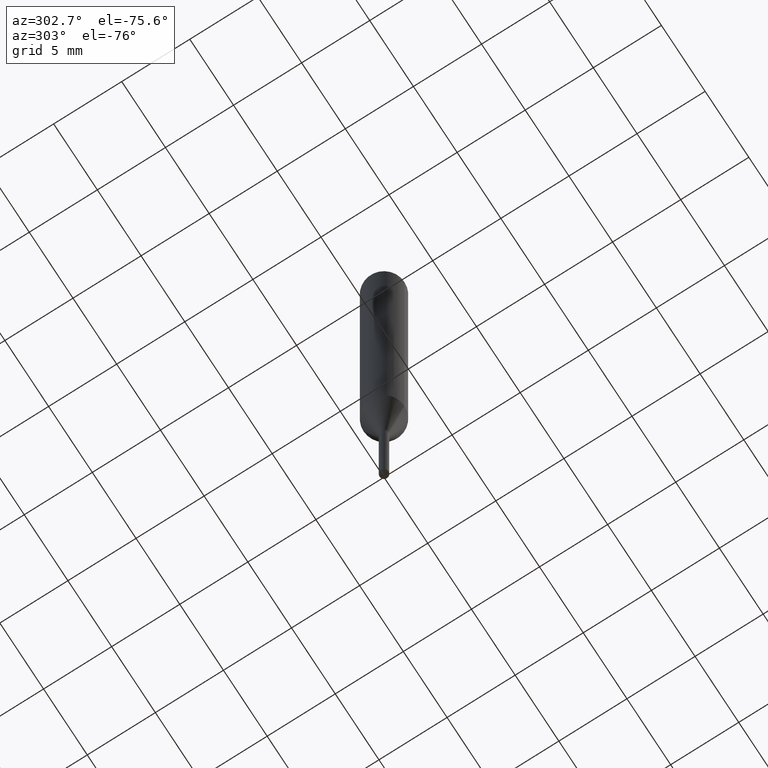
[diagram: clean part render]
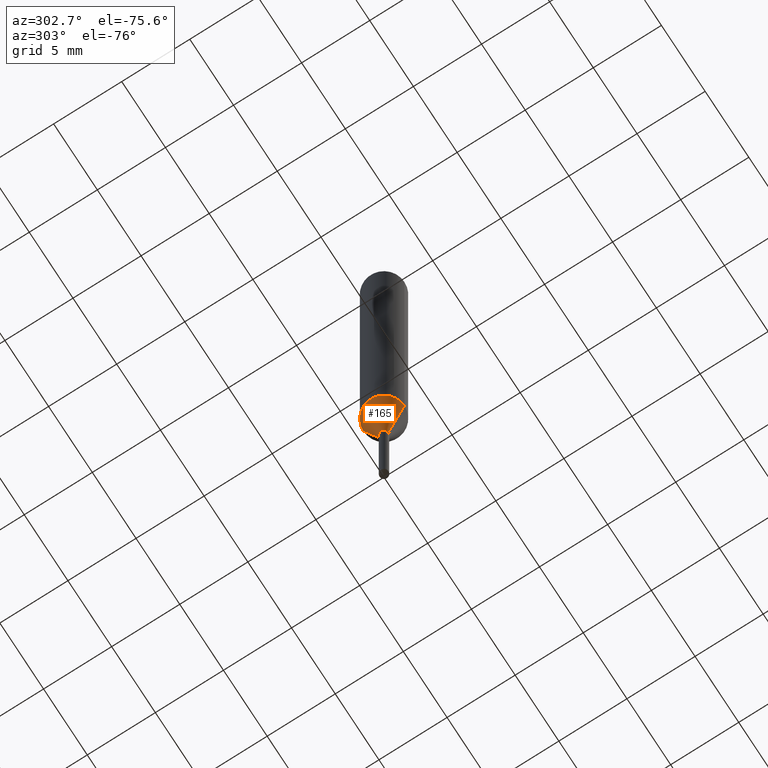
[diagram: same view with one face highlighted and labeled with its STEP entity id]
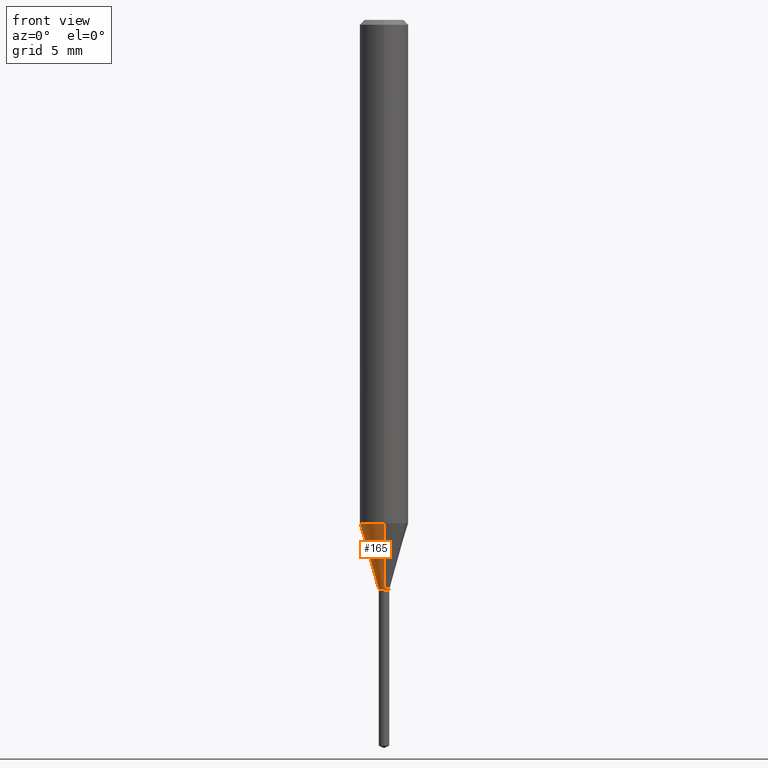
[diagram: same view with one face highlighted and labeled with its STEP entity id]
A machine part, auxiliary view. The second image highlights one B-rep face of the part: STEP entity #165.
A second angle (front view) of the same face is appended — the face is thin or edge-on in the first view.
In plain terms, the highlighted conical surface has half-angle 16.002 deg.
Its self-contained STEP definition (entity closure, byte-faithful):
#93=EDGE_CURVE('',#183,#201,#228,.T.);
#101=VERTEX_POINT('',#237);
#103=EDGE_CURVE('',#115,#101,#239,.T.);
#109=EDGE_CURVE('',#115,#183,#245,.T.);
#115=VERTEX_POINT('',#252);
#161=EDGE_CURVE('',#201,#101,#302,.T.);
#165=ADVANCED_FACE('',(#306),#307,.T.);
#183=VERTEX_POINT('',#329);
#201=VERTEX_POINT('',#351);
#228=CIRCLE('',#372,1.5);
#237=CARTESIAN_POINT('',(0.0,0.325,-35.1991339745962));
#239=CIRCLE('',#386,0.325);
#245=LINE('',#397,#398);
#252=CARTESIAN_POINT('',(3.97997064992272E-017,-0.325,-35.1991339745962));
#302=LINE('',#468,#469);
#306=FACE_OUTER_BOUND('',#475,.T.);
#307=CONICAL_SURFACE('',#476,0.9125,0.279290058693806);
#329=CARTESIAN_POINT('',(1.83690953073357E-016,-1.5,-31.102));
#351=CARTESIAN_POINT('',(0.0,1.5,-31.102));
#372=AXIS2_PLACEMENT_3D('',#538,#539,#540);
#386=AXIS2_PLACEMENT_3D('',#550,#551,#552);
#397=CARTESIAN_POINT('',(1.11745329786292E-016,-0.9125,-33.1505669872981));
#398=VECTOR('',#555,1.0);
#468=CARTESIAN_POINT('',(-1.11745329786292E-016,0.9125,-33.1505669872981));
#469=VECTOR('',#619,1.0);
#475=EDGE_LOOP('',(#622,#623,#624,#625));
#476=AXIS2_PLACEMENT_3D('',#626,#627,#628);
#538=CARTESIAN_POINT('',(0.0,0.0,-31.102));
#539=DIRECTION('',(0.0,0.0,-1.0));
#540=DIRECTION('',(0.0,1.0,0.0));
#550=CARTESIAN_POINT('',(0.0,0.0,-35.1991339745962));
#551=DIRECTION('',(0.0,0.0,-1.0));
#552=DIRECTION('',(0.0,1.0,0.0));
#555=DIRECTION('',(3.3759125764446E-017,-0.275673286024307,0.961251392390441));
#619=DIRECTION('',(3.3759125764446E-017,-0.275673286024307,-0.961251392390441));
#622=ORIENTED_EDGE('',*,*,#161,.T.);
#623=ORIENTED_EDGE('',*,*,#103,.F.);
#624=ORIENTED_EDGE('',*,*,#109,.T.);
#625=ORIENTED_EDGE('',*,*,#93,.T.);
#626=CARTESIAN_POINT('',(0.0,0.0,-33.1505669872981));
#627=DIRECTION('',(-0.0,-0.0,1.0));
#628=DIRECTION('',(0.0,1.0,0.0));